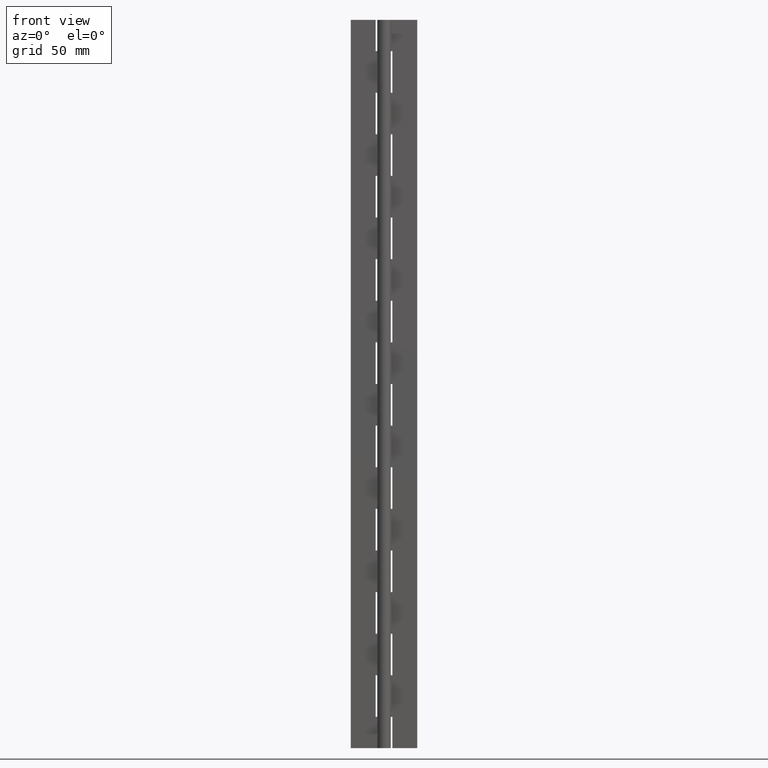
[diagram: clean part render]
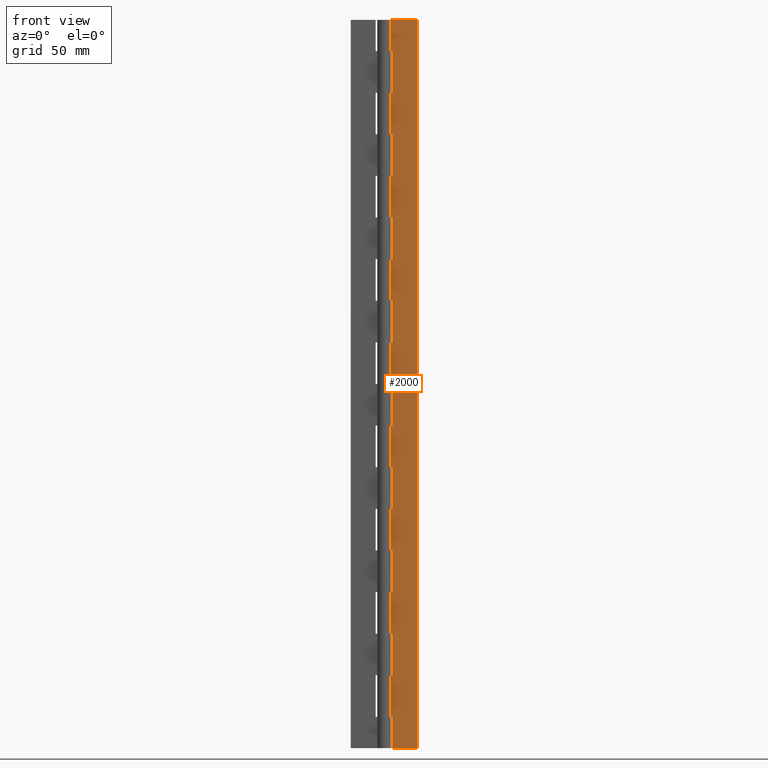
[diagram: same view with one face highlighted and labeled with its STEP entity id]
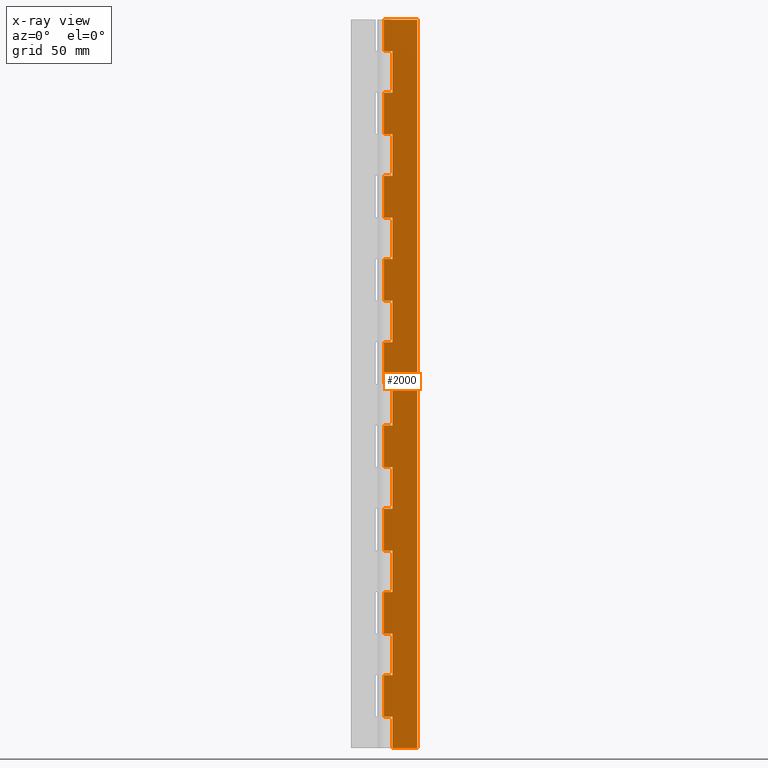
[diagram: x-ray of the same camera — body ghosted, the highlighted face saturated]
A machine part, front view. The second image highlights one B-rep face of the part: STEP entity #2000.
The next image is the same camera in x-ray: the body ghosted, the highlighted face saturated — about 0% of this face is hidden behind the body in this view.
In plain terms, the highlighted face is a freeform B-spline surface patch.
Its self-contained STEP definition (entity closure, byte-faithful):
#300=CARTESIAN_POINT('',(4.0,1.750000000000030,14.999991999999960));
#301=VERTEX_POINT('',#300);
#316=CARTESIAN_POINT('',(4.0,1.750000000000000,-1.421085E-014));
#317=VERTEX_POINT('',#316);
#323=CARTESIAN_POINT('',(4.0,1.750000000000030,14.999991999999960));
#324=CARTESIAN_POINT('',(4.0,1.750000000000000,-1.421085E-014));
#325=QUASI_UNIFORM_CURVE('',1,(#323,#324),.UNSPECIFIED.,.F.,.U.);
#326=EDGE_CURVE('',#301,#317,#325,.T.);
#344=CARTESIAN_POINT('',(-3.214624E-016,1.750000000000000,14.999991999999899));
#345=VERTEX_POINT('',#344);
#346=CARTESIAN_POINT('',(-3.214624E-016,1.750000000000000,14.999991999999899));
#347=CARTESIAN_POINT('',(4.0,1.750000000000030,14.999991999999960));
#348=QUASI_UNIFORM_CURVE('',1,(#346,#347),.UNSPECIFIED.,.F.,.U.);
#349=EDGE_CURVE('',#345,#301,#348,.T.);
#415=CARTESIAN_POINT('',(4.0,1.750000000000000,54.999991999999899));
#416=VERTEX_POINT('',#415);
#422=CARTESIAN_POINT('',(-3.214624E-016,1.750000000000000,54.999991999999899));
#423=VERTEX_POINT('',#422);
#424=CARTESIAN_POINT('',(-3.214624E-016,1.750000000000000,54.999991999999899));
#425=CARTESIAN_POINT('',(4.0,1.750000000000000,54.999991999999899));
#426=QUASI_UNIFORM_CURVE('',1,(#424,#425),.UNSPECIFIED.,.F.,.U.);
#427=EDGE_CURVE('',#423,#416,#426,.T.);
#514=CARTESIAN_POINT('',(-3.214624E-016,1.750000000000000,34.999991999999800));
#515=VERTEX_POINT('',#514);
#535=CARTESIAN_POINT('',(4.0,1.750000000000030,34.999991999999800));
#536=VERTEX_POINT('',#535);
#537=CARTESIAN_POINT('',(4.0,1.750000000000030,34.999991999999800));
#538=CARTESIAN_POINT('',(-3.214624E-016,1.750000000000000,34.999991999999800));
#539=QUASI_UNIFORM_CURVE('',1,(#537,#538),.UNSPECIFIED.,.F.,.U.);
#540=EDGE_CURVE('',#536,#515,#539,.T.);
#569=CARTESIAN_POINT('',(4.0,1.750000000000000,54.999991999999899));
#570=CARTESIAN_POINT('',(4.0,1.750000000000030,34.999991999999800));
#571=QUASI_UNIFORM_CURVE('',1,(#569,#570),.UNSPECIFIED.,.F.,.U.);
#572=EDGE_CURVE('',#416,#536,#571,.T.);
#591=CARTESIAN_POINT('',(4.0,1.750000000000000,94.999992000000006));
#592=VERTEX_POINT('',#591);
#598=CARTESIAN_POINT('',(-3.214624E-016,1.750000000000000,94.999992000000006));
#599=VERTEX_POINT('',#598);
#600=CARTESIAN_POINT('',(-3.214624E-016,1.750000000000000,94.999992000000006));
#601=CARTESIAN_POINT('',(4.0,1.750000000000000,94.999992000000006));
#602=QUASI_UNIFORM_CURVE('',1,(#600,#601),.UNSPECIFIED.,.F.,.U.);
#603=EDGE_CURVE('',#599,#592,#602,.T.);
#690=CARTESIAN_POINT('',(-3.214624E-016,1.750000000000000,74.999991999999892));
#691=VERTEX_POINT('',#690);
#711=CARTESIAN_POINT('',(4.0,1.750000000000030,74.999991999999892));
#712=VERTEX_POINT('',#711);
#713=CARTESIAN_POINT('',(4.0,1.750000000000030,74.999991999999892));
#714=CARTESIAN_POINT('',(-3.214624E-016,1.750000000000000,74.999991999999892));
#715=QUASI_UNIFORM_CURVE('',1,(#713,#714),.UNSPECIFIED.,.F.,.U.);
#716=EDGE_CURVE('',#712,#691,#715,.T.);
#745=CARTESIAN_POINT('',(4.0,1.750000000000000,94.999992000000006));
#746=CARTESIAN_POINT('',(4.0,1.750000000000030,74.999991999999892));
#747=QUASI_UNIFORM_CURVE('',1,(#745,#746),.UNSPECIFIED.,.F.,.U.);
#748=EDGE_CURVE('',#592,#712,#747,.T.);
#767=CARTESIAN_POINT('',(4.0,1.750000000000000,134.999991999999990));
#768=VERTEX_POINT('',#767);
#774=CARTESIAN_POINT('',(-3.214624E-016,1.750000000000000,134.999991999999990));
#775=VERTEX_POINT('',#774);
#776=CARTESIAN_POINT('',(-3.214624E-016,1.750000000000000,134.999991999999990));
#777=CARTESIAN_POINT('',(4.0,1.750000000000000,134.999991999999990));
#778=QUASI_UNIFORM_CURVE('',1,(#776,#777),.UNSPECIFIED.,.F.,.U.);
#779=EDGE_CURVE('',#775,#768,#778,.T.);
#866=CARTESIAN_POINT('',(-3.214624E-016,1.750000000000000,114.999991999999810));
#867=VERTEX_POINT('',#866);
#887=CARTESIAN_POINT('',(4.0,1.750000000000030,114.999991999999810));
#888=VERTEX_POINT('',#887);
#889=CARTESIAN_POINT('',(4.0,1.750000000000030,114.999991999999810));
#890=CARTESIAN_POINT('',(-3.214624E-016,1.750000000000000,114.999991999999810));
#891=QUASI_UNIFORM_CURVE('',1,(#889,#890),.UNSPECIFIED.,.F.,.U.);
#892=EDGE_CURVE('',#888,#867,#891,.T.);
#921=CARTESIAN_POINT('',(4.0,1.750000000000000,134.999991999999990));
#922=CARTESIAN_POINT('',(4.0,1.750000000000030,114.999991999999810));
#923=QUASI_UNIFORM_CURVE('',1,(#921,#922),.UNSPECIFIED.,.F.,.U.);
#924=EDGE_CURVE('',#768,#888,#923,.T.);
#943=CARTESIAN_POINT('',(4.0,1.750000000000000,174.999991999999990));
#944=VERTEX_POINT('',#943);
#950=CARTESIAN_POINT('',(-3.214624E-016,1.750000000000000,174.999991999999990));
#951=VERTEX_POINT('',#950);
#952=CARTESIAN_POINT('',(-3.214624E-016,1.750000000000000,174.999991999999990));
#953=CARTESIAN_POINT('',(4.0,1.750000000000000,174.999991999999990));
#954=QUASI_UNIFORM_CURVE('',1,(#952,#953),.UNSPECIFIED.,.F.,.U.);
#955=EDGE_CURVE('',#951,#944,#954,.T.);
#1042=CARTESIAN_POINT('',(-3.214624E-016,1.750000000000000,154.999991999999990));
#1043=VERTEX_POINT('',#1042);
#1063=CARTESIAN_POINT('',(4.0,1.750000000000030,154.999991999999990));
#1064=VERTEX_POINT('',#1063);
#1065=CARTESIAN_POINT('',(4.0,1.750000000000030,154.999991999999990));
#1066=CARTESIAN_POINT('',(-3.214624E-016,1.750000000000000,154.999991999999990));
#1067=QUASI_UNIFORM_CURVE('',1,(#1065,#1066),.UNSPECIFIED.,.F.,.U.);
#1068=EDGE_CURVE('',#1064,#1043,#1067,.T.);
#1097=CARTESIAN_POINT('',(4.0,1.750000000000000,174.999991999999990));
#1098=CARTESIAN_POINT('',(4.0,1.750000000000030,154.999991999999990));
#1099=QUASI_UNIFORM_CURVE('',1,(#1097,#1098),.UNSPECIFIED.,.F.,.U.);
#1100=EDGE_CURVE('',#944,#1064,#1099,.T.);
#1119=CARTESIAN_POINT('',(4.0,1.750000000000000,214.999991999999990));
#1120=VERTEX_POINT('',#1119);
#1126=CARTESIAN_POINT('',(-3.214624E-016,1.750000000000000,214.999991999999990));
#1127=VERTEX_POINT('',#1126);
#1128=CARTESIAN_POINT('',(-3.214624E-016,1.750000000000000,214.999991999999990));
#1129=CARTESIAN_POINT('',(4.0,1.750000000000000,214.999991999999990));
#1130=QUASI_UNIFORM_CURVE('',1,(#1128,#1129),.UNSPECIFIED.,.F.,.U.);
#1131=EDGE_CURVE('',#1127,#1120,#1130,.T.);
#1218=CARTESIAN_POINT('',(-3.214624E-016,1.750000000000000,194.999991999999990));
#1219=VERTEX_POINT('',#1218);
#1239=CARTESIAN_POINT('',(4.0,1.750000000000030,194.999991999999990));
#1240=VERTEX_POINT('',#1239);
#1241=CARTESIAN_POINT('',(4.0,1.750000000000030,194.999991999999990));
#1242=CARTESIAN_POINT('',(-3.214624E-016,1.750000000000000,194.999991999999990));
#1243=QUASI_UNIFORM_CURVE('',1,(#1241,#1242),.UNSPECIFIED.,.F.,.U.);
#1244=EDGE_CURVE('',#1240,#1219,#1243,.T.);
#1273=CARTESIAN_POINT('',(4.0,1.750000000000000,214.999991999999990));
#1274=CARTESIAN_POINT('',(4.0,1.750000000000030,194.999991999999990));
#1275=QUASI_UNIFORM_CURVE('',1,(#1273,#1274),.UNSPECIFIED.,.F.,.U.);
#1276=EDGE_CURVE('',#1120,#1240,#1275,.T.);
#1295=CARTESIAN_POINT('',(4.0,1.750000000000000,254.999991999999990));
#1296=VERTEX_POINT('',#1295);
#1302=CARTESIAN_POINT('',(-3.214624E-016,1.750000000000000,254.999991999999990));
#1303=VERTEX_POINT('',#1302);
#1304=CARTESIAN_POINT('',(-3.214624E-016,1.750000000000000,254.999991999999990));
#1305=CARTESIAN_POINT('',(4.0,1.750000000000000,254.999991999999990));
#1306=QUASI_UNIFORM_CURVE('',1,(#1304,#1305),.UNSPECIFIED.,.F.,.U.);
#1307=EDGE_CURVE('',#1303,#1296,#1306,.T.);
#1394=CARTESIAN_POINT('',(-3.214624E-016,1.750000000000000,234.999991999999990));
#1395=VERTEX_POINT('',#1394);
#1415=CARTESIAN_POINT('',(4.0,1.750000000000030,234.999991999999990));
#1416=VERTEX_POINT('',#1415);
#1417=CARTESIAN_POINT('',(4.0,1.750000000000030,234.999991999999990));
#1418=CARTESIAN_POINT('',(-3.214624E-016,1.750000000000000,234.999991999999990));
#1419=QUASI_UNIFORM_CURVE('',1,(#1417,#1418),.UNSPECIFIED.,.F.,.U.);
#1420=EDGE_CURVE('',#1416,#1395,#1419,.T.);
#1449=CARTESIAN_POINT('',(4.0,1.750000000000000,254.999991999999990));
#1450=CARTESIAN_POINT('',(4.0,1.750000000000030,234.999991999999990));
#1451=QUASI_UNIFORM_CURVE('',1,(#1449,#1450),.UNSPECIFIED.,.F.,.U.);
#1452=EDGE_CURVE('',#1296,#1416,#1451,.T.);
#1471=CARTESIAN_POINT('',(4.0,1.750000000000000,294.999992000000020));
#1472=VERTEX_POINT('',#1471);
#1478=CARTESIAN_POINT('',(-3.214624E-016,1.750000000000000,294.999992000000020));
#1479=VERTEX_POINT('',#1478);
#1480=CARTESIAN_POINT('',(-3.214624E-016,1.750000000000000,294.999992000000020));
#1481=CARTESIAN_POINT('',(4.0,1.750000000000000,294.999992000000020));
#1482=QUASI_UNIFORM_CURVE('',1,(#1480,#1481),.UNSPECIFIED.,.F.,.U.);
#1483=EDGE_CURVE('',#1479,#1472,#1482,.T.);
#1570=CARTESIAN_POINT('',(-3.214624E-016,1.750000000000000,274.999992000000020));
#1571=VERTEX_POINT('',#1570);
#1591=CARTESIAN_POINT('',(4.0,1.750000000000030,274.999992000000020));
#1592=VERTEX_POINT('',#1591);
#1593=CARTESIAN_POINT('',(4.0,1.750000000000030,274.999992000000020));
#1594=CARTESIAN_POINT('',(-3.214624E-016,1.750000000000000,274.999992000000020));
#1595=QUASI_UNIFORM_CURVE('',1,(#1593,#1594),.UNSPECIFIED.,.F.,.U.);
#1596=EDGE_CURVE('',#1592,#1571,#1595,.T.);
#1625=CARTESIAN_POINT('',(4.0,1.750000000000000,294.999992000000020));
#1626=CARTESIAN_POINT('',(4.0,1.750000000000030,274.999992000000020));
#1627=QUASI_UNIFORM_CURVE('',1,(#1625,#1626),.UNSPECIFIED.,.F.,.U.);
#1628=EDGE_CURVE('',#1472,#1592,#1627,.T.);
#1647=CARTESIAN_POINT('',(4.0,1.750000000000000,334.999992000000020));
#1648=VERTEX_POINT('',#1647);
#1654=CARTESIAN_POINT('',(-3.214624E-016,1.750000000000000,334.999992000000020));
#1655=VERTEX_POINT('',#1654);
#1656=CARTESIAN_POINT('',(-3.214624E-016,1.750000000000000,334.999992000000020));
#1657=CARTESIAN_POINT('',(4.0,1.750000000000000,334.999992000000020));
#1658=QUASI_UNIFORM_CURVE('',1,(#1656,#1657),.UNSPECIFIED.,.F.,.U.);
#1659=EDGE_CURVE('',#1655,#1648,#1658,.T.);
#1746=CARTESIAN_POINT('',(-3.214624E-016,1.750000000000000,314.999992000000020));
#1747=VERTEX_POINT('',#1746);
#1767=CARTESIAN_POINT('',(4.0,1.750000000000030,314.999992000000020));
#1768=VERTEX_POINT('',#1767);
#1769=CARTESIAN_POINT('',(4.0,1.750000000000030,314.999992000000020));
#1770=CARTESIAN_POINT('',(-3.214624E-016,1.750000000000000,314.999992000000020));
#1771=QUASI_UNIFORM_CURVE('',1,(#1769,#1770),.UNSPECIFIED.,.F.,.U.);
#1772=EDGE_CURVE('',#1768,#1747,#1771,.T.);
#1801=CARTESIAN_POINT('',(4.0,1.750000000000000,334.999992000000020));
#1802=CARTESIAN_POINT('',(4.0,1.750000000000030,314.999992000000020));
#1803=QUASI_UNIFORM_CURVE('',1,(#1801,#1802),.UNSPECIFIED.,.F.,.U.);
#1804=EDGE_CURVE('',#1648,#1768,#1803,.T.);
#1814=CARTESIAN_POINT('',(16.0,1.750000000000000,0.0));
#1815=VERTEX_POINT('',#1814);
#1816=CARTESIAN_POINT('',(4.0,1.750000000000000,-1.421085E-014));
#1817=CARTESIAN_POINT('',(16.0,1.750000000000000,0.0));
#1818=QUASI_UNIFORM_CURVE('',1,(#1816,#1817),.UNSPECIFIED.,.F.,.U.);
#1819=EDGE_CURVE('',#317,#1815,#1818,.T.);
#1842=CARTESIAN_POINT('',(16.0,1.750000000000000,349.999992000000020));
#1843=VERTEX_POINT('',#1842);
#1886=CARTESIAN_POINT('',(-3.214592E-016,1.750000000000000,349.999992000000020));
#1887=VERTEX_POINT('',#1886);
#1907=CARTESIAN_POINT('',(-3.214592E-016,1.750000000000000,349.999992000000020));
#1908=CARTESIAN_POINT('',(16.0,1.750000000000000,349.999992000000020));
#1909=QUASI_UNIFORM_CURVE('',1,(#1907,#1908),.UNSPECIFIED.,.F.,.U.);
#1910=EDGE_CURVE('',#1887,#1843,#1909,.T.);
#1915=CARTESIAN_POINT('',(-0.799199968988895,1.750000000000000,-17.482498922032089));
#1916=CARTESIAN_POINT('',(-0.799199968988895,1.750000000000000,367.482500309763510));
#1917=CARTESIAN_POINT('',(16.799200398142339,1.750000000000000,-17.482498922032089));
#1918=CARTESIAN_POINT('',(16.799200398142339,1.750000000000000,367.482500309763510));
#1919=B_SPLINE_SURFACE_WITH_KNOTS('',1,1,((#1915,#1917),(#1916,#1918)),.UNSPECIFIED.,.F.,.F.,.U.,(2,2),(2,2),(0.0,384.964999231795620),(0.0,17.598400367131230),.UNSPECIFIED.);
#1920=ORIENTED_EDGE('',*,*,#349,.T.);
#1921=ORIENTED_EDGE('',*,*,#326,.T.);
#1922=ORIENTED_EDGE('',*,*,#1819,.T.);
#1923=CARTESIAN_POINT('',(16.0,1.750000000000000,349.999992000000020));
#1924=CARTESIAN_POINT('',(16.0,1.750000000000000,0.0));
#1925=QUASI_UNIFORM_CURVE('',1,(#1923,#1924),.UNSPECIFIED.,.F.,.U.);
#1926=EDGE_CURVE('',#1843,#1815,#1925,.T.);
#1927=ORIENTED_EDGE('',*,*,#1926,.F.);
#1928=ORIENTED_EDGE('',*,*,#1910,.F.);
#1929=CARTESIAN_POINT('',(-3.214592E-016,1.750000000000000,349.999992000000020));
#1930=CARTESIAN_POINT('',(-3.214624E-016,1.750000000000000,334.999992000000020));
#1931=QUASI_UNIFORM_CURVE('',1,(#1929,#1930),.UNSPECIFIED.,.F.,.U.);
#1932=EDGE_CURVE('',#1887,#1655,#1931,.T.);
#1933=ORIENTED_EDGE('',*,*,#1932,.T.);
#1934=ORIENTED_EDGE('',*,*,#1659,.T.);
#1935=ORIENTED_EDGE('',*,*,#1804,.T.);
#1936=ORIENTED_EDGE('',*,*,#1772,.T.);
#1937=CARTESIAN_POINT('',(-3.214624E-016,1.750000000000000,314.999992000000020));
#1938=CARTESIAN_POINT('',(-3.214624E-016,1.750000000000000,294.999992000000020));
#1939=QUASI_UNIFORM_CURVE('',1,(#1937,#1938),.UNSPECIFIED.,.F.,.U.);
#1940=EDGE_CURVE('',#1747,#1479,#1939,.T.);
#1941=ORIENTED_EDGE('',*,*,#1940,.T.);
#1942=ORIENTED_EDGE('',*,*,#1483,.T.);
#1943=ORIENTED_EDGE('',*,*,#1628,.T.);
#1944=ORIENTED_EDGE('',*,*,#1596,.T.);
#1945=CARTESIAN_POINT('',(-3.214624E-016,1.750000000000000,274.999992000000020));
#1946=CARTESIAN_POINT('',(-3.214624E-016,1.750000000000000,254.999991999999990));
#1947=QUASI_UNIFORM_CURVE('',1,(#1945,#1946),.UNSPECIFIED.,.F.,.U.);
#1948=EDGE_CURVE('',#1571,#1303,#1947,.T.);
#1949=ORIENTED_EDGE('',*,*,#1948,.T.);
#1950=ORIENTED_EDGE('',*,*,#1307,.T.);
#1951=ORIENTED_EDGE('',*,*,#1452,.T.);
#1952=ORIENTED_EDGE('',*,*,#1420,.T.);
#1953=CARTESIAN_POINT('',(-3.214624E-016,1.750000000000000,234.999991999999990));
#1954=CARTESIAN_POINT('',(-3.214624E-016,1.750000000000000,214.999991999999990));
#1955=QUASI_UNIFORM_CURVE('',1,(#1953,#1954),.UNSPECIFIED.,.F.,.U.);
#1956=EDGE_CURVE('',#1395,#1127,#1955,.T.);
#1957=ORIENTED_EDGE('',*,*,#1956,.T.);
#1958=ORIENTED_EDGE('',*,*,#1131,.T.);
#1959=ORIENTED_EDGE('',*,*,#1276,.T.);
#1960=ORIENTED_EDGE('',*,*,#1244,.T.);
#1961=CARTESIAN_POINT('',(-3.214624E-016,1.750000000000000,194.999991999999990));
#1962=CARTESIAN_POINT('',(-3.214624E-016,1.750000000000000,174.999991999999990));
#1963=QUASI_UNIFORM_CURVE('',1,(#1961,#1962),.UNSPECIFIED.,.F.,.U.);
#1964=EDGE_CURVE('',#1219,#951,#1963,.T.);
#1965=ORIENTED_EDGE('',*,*,#1964,.T.);
#1966=ORIENTED_EDGE('',*,*,#955,.T.);
#1967=ORIENTED_EDGE('',*,*,#1100,.T.);
#1968=ORIENTED_EDGE('',*,*,#1068,.T.);
#1969=CARTESIAN_POINT('',(-3.214624E-016,1.750000000000000,154.999991999999990));
#1970=CARTESIAN_POINT('',(-3.214624E-016,1.750000000000000,134.999991999999990));
#1971=QUASI_UNIFORM_CURVE('',1,(#1969,#1970),.UNSPECIFIED.,.F.,.U.);
#1972=EDGE_CURVE('',#1043,#775,#1971,.T.);
#1973=ORIENTED_EDGE('',*,*,#1972,.T.);
#1974=ORIENTED_EDGE('',*,*,#779,.T.);
#1975=ORIENTED_EDGE('',*,*,#924,.T.);
#1976=ORIENTED_EDGE('',*,*,#892,.T.);
#1977=CARTESIAN_POINT('',(-3.214624E-016,1.750000000000000,114.999991999999810));
#1978=CARTESIAN_POINT('',(-3.214624E-016,1.750000000000000,94.999992000000006));
#1979=QUASI_UNIFORM_CURVE('',1,(#1977,#1978),.UNSPECIFIED.,.F.,.U.);
#1980=EDGE_CURVE('',#867,#599,#1979,.T.);
#1981=ORIENTED_EDGE('',*,*,#1980,.T.);
#1982=ORIENTED_EDGE('',*,*,#603,.T.);
#1983=ORIENTED_EDGE('',*,*,#748,.T.);
#1984=ORIENTED_EDGE('',*,*,#716,.T.);
#1985=CARTESIAN_POINT('',(-3.214624E-016,1.750000000000000,74.999991999999892));
#1986=CARTESIAN_POINT('',(-3.214624E-016,1.750000000000000,54.999991999999899));
#1987=QUASI_UNIFORM_CURVE('',1,(#1985,#1986),.UNSPECIFIED.,.F.,.U.);
#1988=EDGE_CURVE('',#691,#423,#1987,.T.);
#1989=ORIENTED_EDGE('',*,*,#1988,.T.);
#1990=ORIENTED_EDGE('',*,*,#427,.T.);
#1991=ORIENTED_EDGE('',*,*,#572,.T.);
#1992=ORIENTED_EDGE('',*,*,#540,.T.);
#1993=CARTESIAN_POINT('',(-3.214624E-016,1.750000000000000,34.999991999999800));
#1994=CARTESIAN_POINT('',(-3.214624E-016,1.750000000000000,14.999991999999899));
#1995=QUASI_UNIFORM_CURVE('',1,(#1993,#1994),.UNSPECIFIED.,.F.,.U.);
#1996=EDGE_CURVE('',#515,#345,#1995,.T.);
#1997=ORIENTED_EDGE('',*,*,#1996,.T.);
#1998=EDGE_LOOP('',(#1920,#1921,#1922,#1927,#1928,#1933,#1934,#1935,#1936,#1941,#1942,#1943,#1944,#1949,#1950,#1951,#1952,#1957,#1958,#1959,#1960,#1965,#1966,#1967,#1968,#1973,#1974,#1975,#1976,#1981,#1982,#1983,#1984,#1989,#1990,#1991,#1992,#1997));
#1999=FACE_OUTER_BOUND('',#1998,.T.);
#2000=ADVANCED_FACE('',(#1999),#1919,.F.);